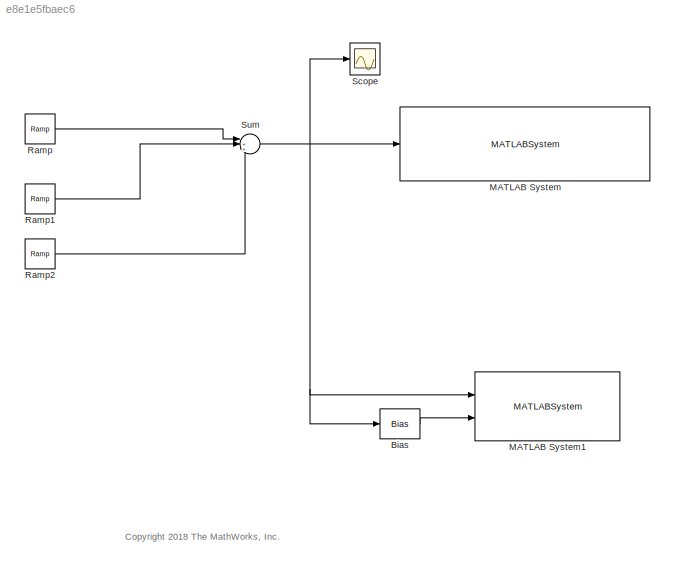
MODEL slx_e8e1e5fbaec6
KIND model
CONFIG AbsTol = auto
CONFIG EnableMultiTasking = on
CONFIG FixedStep = 1/200
CONFIG MaxStep = auto
CONFIG MinStep = auto
CONFIG RelTol = 1e-3
CONFIG SampleTimeConstraint = Unconstrained
CONFIG Solver = FixedStepDiscrete
CONFIG SolverName = FixedStepDiscrete
CONFIG StartTime = 0.0
CONFIG StopTime = 40
BLOCK [Bias] Bias
  Bias = -10
  SaturateOnIntegerOverflow = off
BLOCK [MATLABSystem] MATLAB System
  MaskDisplay = disp('Display Heart Rate');\nport_label('input',1,'Heart Rate');
  MaskType = displayHR
  Ports = [1]
  System = displayHR
  txtColor_ = Yellow
  txtSize_ = uint8( 5 )
  x_ = 0
  y_ = 0
BLOCK [MATLABSystem] MATLAB System1
  MaskDisplay = disp('ECG Signal Display');\nport_label('input',1,'Raw Data');\nport_label('input',2,'Filtered Data');
  MaskType = displaySig
  Ports = [2]
  System = displaySig
  line1Color_ = Green
  line2Color_ = Red
BLOCK [Reference] Ramp  REF=simulink/Sources/Ramp
  Ports = [0, 1]
  SourceBlock = simulink/Sources/Ramp
  SourceProductBaseCode = SL
  SourceProductName = Simulink
  SourceType = Ramp
BLOCK [Reference] Ramp1  REF=simulink/Sources/Ramp
  Ports = [0, 1]
  SourceBlock = simulink/Sources/Ramp
  SourceProductBaseCode = SL
  SourceProductName = Simulink
  SourceType = Ramp
BLOCK [Reference] Ramp2  REF=simulink/Sources/Ramp
  Ports = [0, 1]
  SourceBlock = simulink/Sources/Ramp
  SourceProductBaseCode = SL
  SourceProductName = Simulink
  SourceType = Ramp
BLOCK [Scope] Scope
  Floating = off
  NumInputPorts = 1
  Ports = [1]
  ScopeSpecificationString = Simulink.scopes.TimeScopeBlockCfg('CurrentConfiguration', extmgr.ConfigurationSet(extmgr.Configuration('Core','General UI',true),extmgr.Configuration('Core','Source UI',true),extmgr.Configuration('Sources','WiredSimulink',true),extmgr.Configuration('Visuals','Time Domain',true,'SerializedDisplays',{struct('MinYLimReal','-3.00625','MaxYLimReal','27.05625','YLabelReal','','MinYLimMag','0.00000','Max...<+1327ch>
BLOCK [Sum] Sum
  IconShape = round
  InputSameDT = off
  Inputs = |+++
  OutDataTypeStr = Inherit: Inherit via internal rule
  Ports = [3, 1]
  SaturateOnIntegerOverflow = off
ANNOTATION (root): <copyright redacted>
LINE Bias:1 -> MATLAB System1:2
LINE Ramp1:1 -> Sum:2
LINE Ramp2:1 -> Sum:3
LINE Ramp:1 -> Sum:1
NET Sum:1 -> Bias:1, MATLAB System1:1, MATLAB System:1, Scope:1
note: NET lines group one-source signal fan-out (src -> all destinations, sorted); 1:1 wires keep LINE
